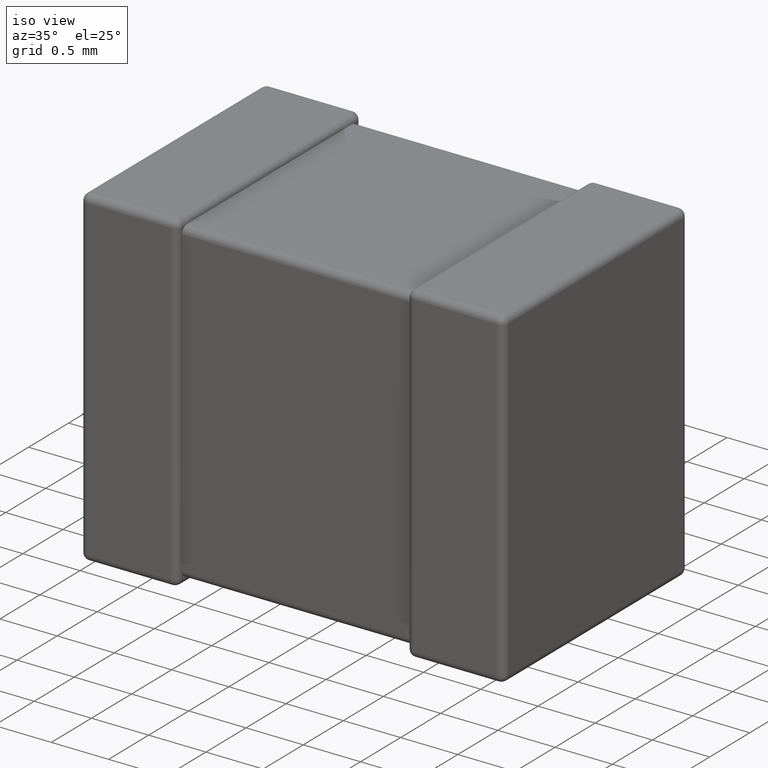
[diagram: clean part render]
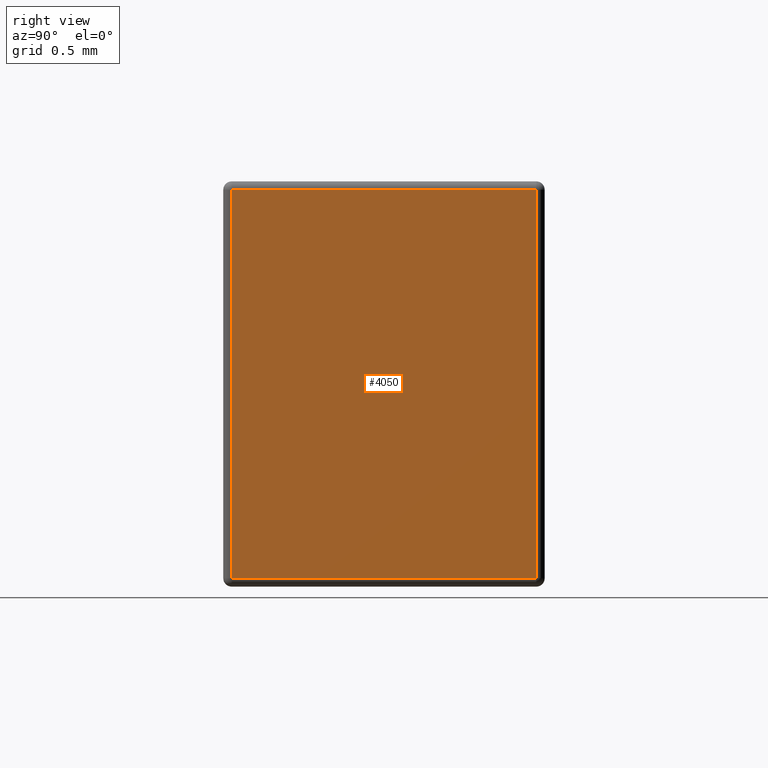
[diagram: tour spotlight — one face highlighted and labeled with its STEP entity id]
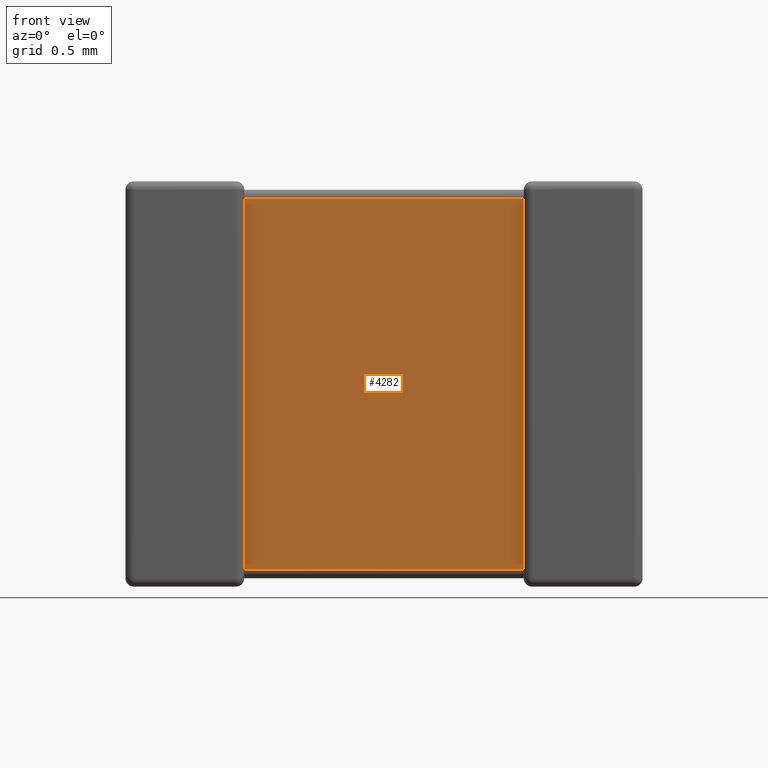
[diagram: tour spotlight — one face highlighted and labeled with its STEP entity id]
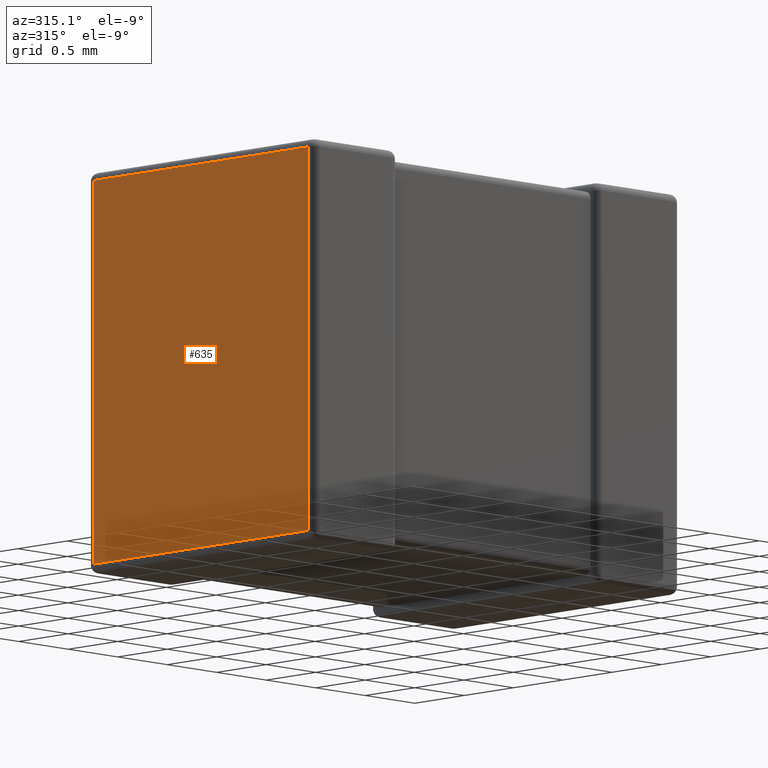
[diagram: tour spotlight — one face highlighted and labeled with its STEP entity id]
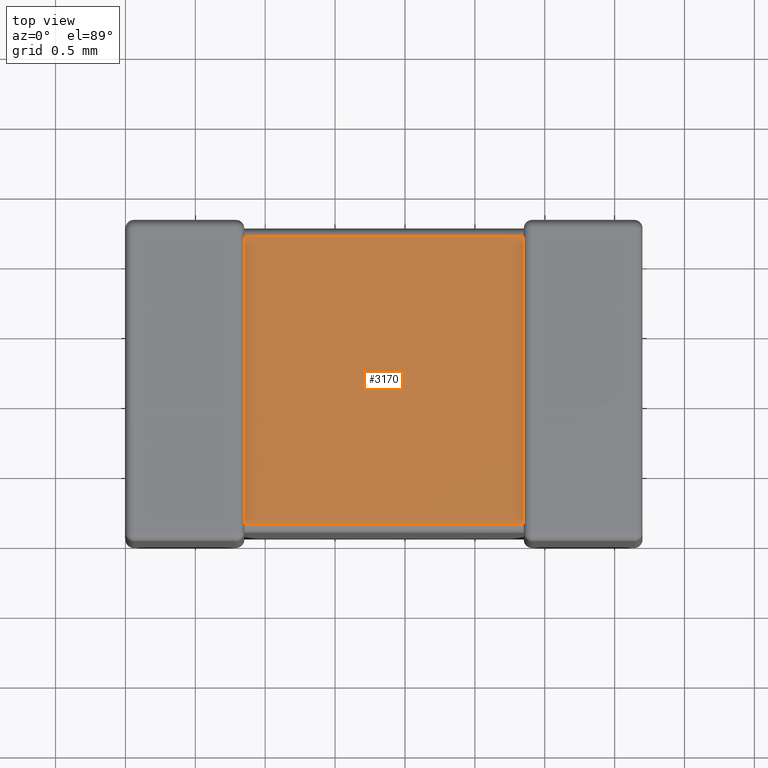
[diagram: tour spotlight — one face highlighted and labeled with its STEP entity id]
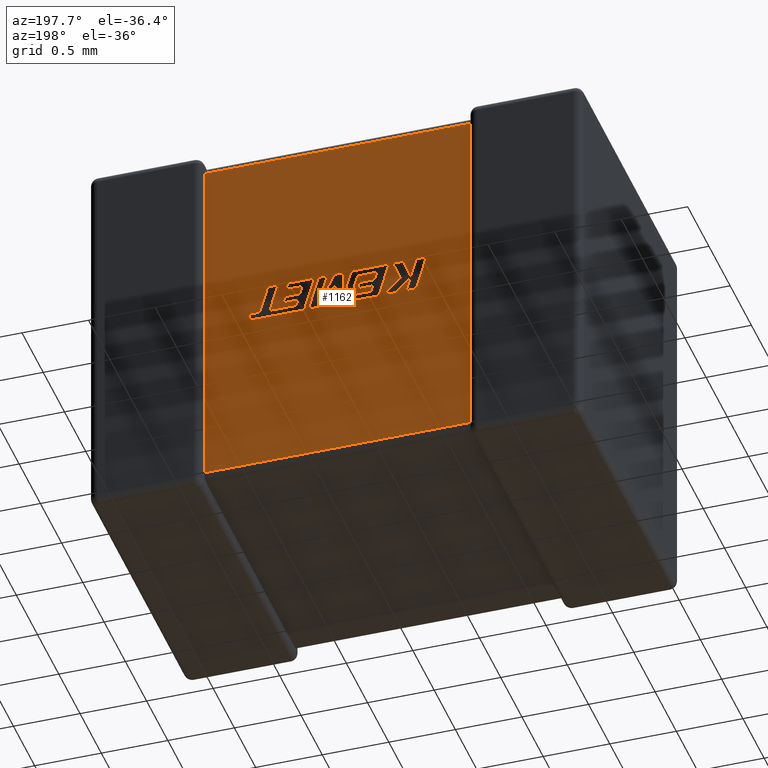
[diagram: tour spotlight — one face highlighted and labeled with its STEP entity id]
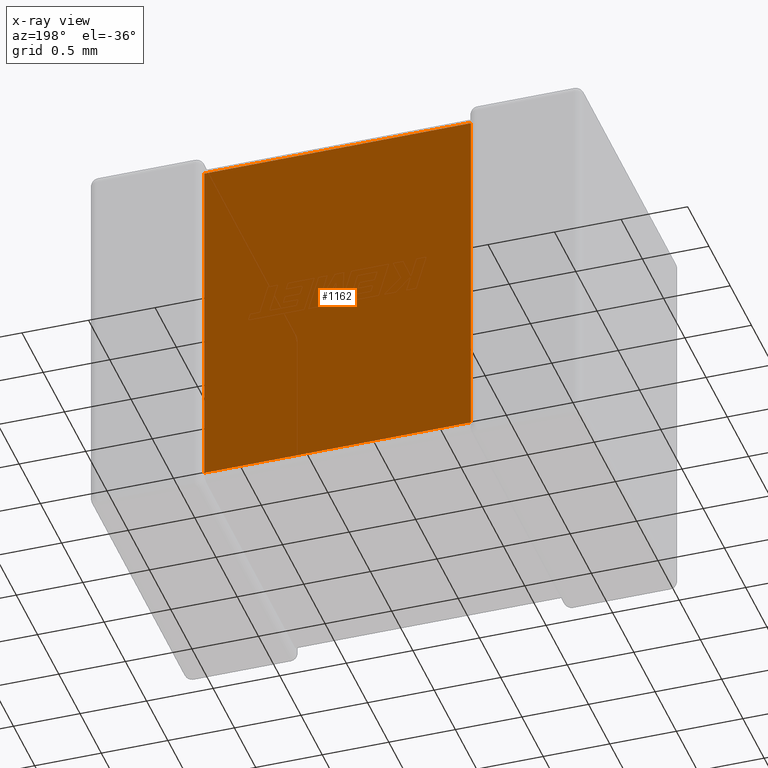
[diagram: x-ray of the same camera — body ghosted, this tour face saturated]
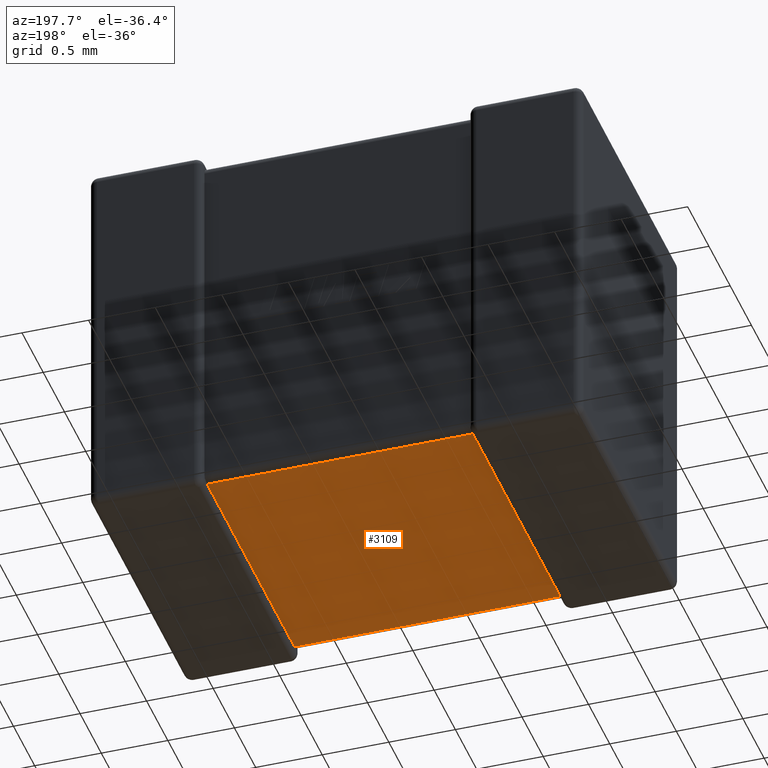
[diagram: tour spotlight — one face highlighted and labeled with its STEP entity id]
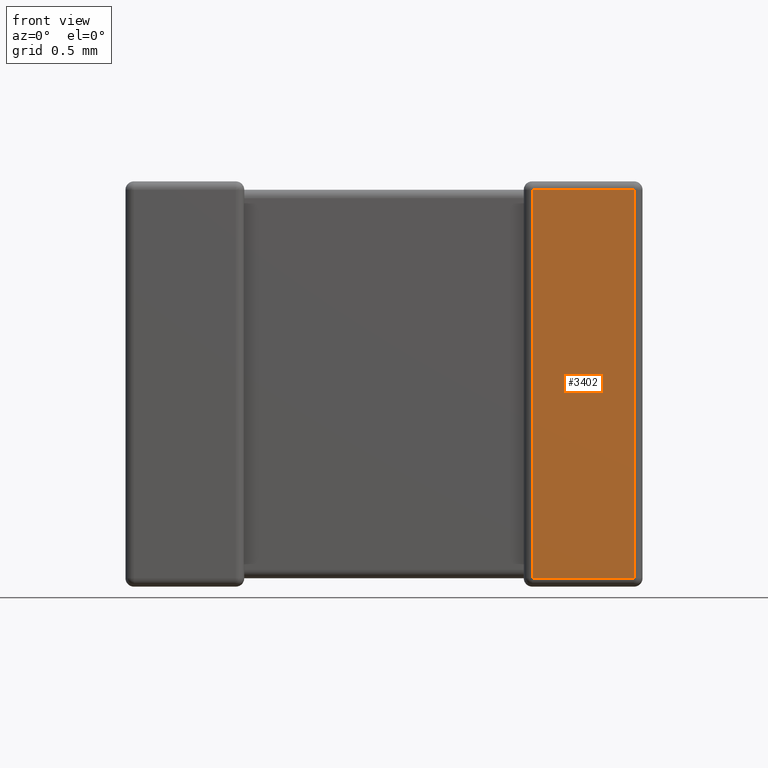
[diagram: tour spotlight — one face highlighted and labeled with its STEP entity id]
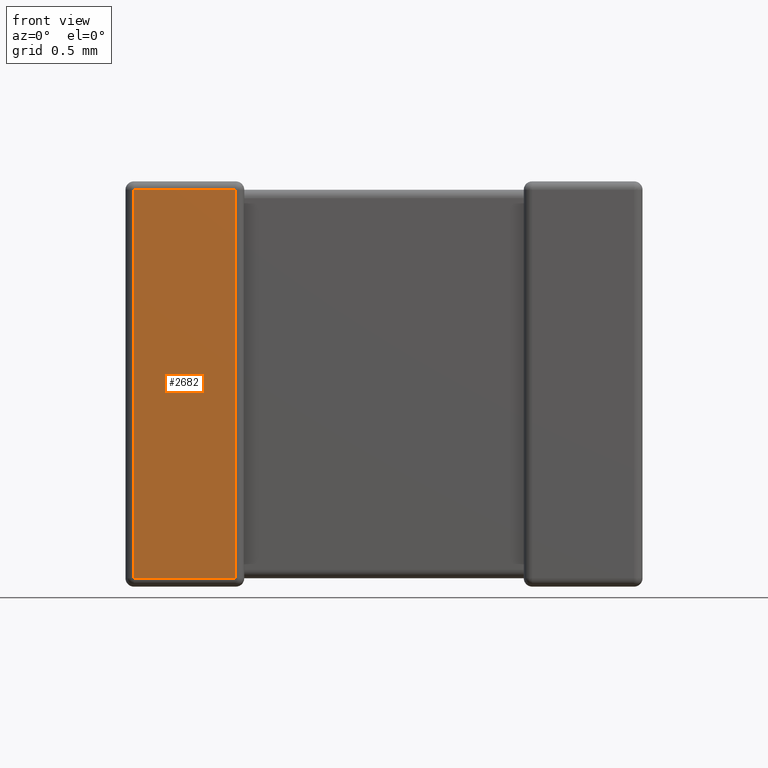
[diagram: tour spotlight — one face highlighted and labeled with its STEP entity id]
A machine part: a face-by-face anatomy tour. The part has 125 B-rep faces; the first image is the clean iso view, then the 8 largest visible faces are spotlighted one at a time (largest first), each with its STEP entity span.

Face 1 — right view, entity #4050. In plain terms, the highlighted planar face has unit normal (-1, 0, 0).
Definition (entity closure, byte-faithful):
#410 = AXIS2_PLACEMENT_3D ( 'NONE', #893, #3086, #1291 ) ;
#512 = DIRECTION ( 'NONE',  ( 0.0000000000000000000, 0.0000000000000000000, 1.000000000000000000 ) ) ;
#593 = DIRECTION ( 'NONE',  ( 0.0000000000000000000, 0.0000000000000000000, -1.000000000000000000 ) ) ;
#645 = LINE ( 'NONE', #2767, #1199 ) ;
#893 = CARTESIAN_POINT ( 'NONE',  ( 3.699999999999999700, 0.0000000000000000000, 0.0000000000000000000 ) ) ;
#1071 = DIRECTION ( 'NONE',  ( 0.0000000000000000000, -1.000000000000000000, 0.0000000000000000000 ) ) ;
#1101 = EDGE_CURVE ( 'NONE', #3103, #1123, #2172, .T. ) ;
#1123 = VERTEX_POINT ( 'NONE', #2667 ) ;
#1181 = CARTESIAN_POINT ( 'NONE',  ( 3.699999999999999700, 0.0000000000000000000, -0.06031999999999999900 ) ) ;
#1199 = VECTOR ( 'NONE', #593, 1000.000000000000000 ) ;
#1291 = DIRECTION ( 'NONE',  ( 0.0000000000000000000, 0.0000000000000000000, 1.000000000000000000 ) ) ;
#1416 = VERTEX_POINT ( 'NONE', #2870 ) ;
#1466 = DIRECTION ( 'NONE',  ( 0.0000000000000000000, 1.000000000000000000, -0.0000000000000000000 ) ) ;
#1938 = VECTOR ( 'NONE', #512, 1000.000000000000000 ) ;
#2145 = LINE ( 'NONE', #3295, #3142 ) ;
#2172 = LINE ( 'NONE', #3685, #1938 ) ;
#2227 = ORIENTED_EDGE ( 'NONE', *, *, #1101, .T. ) ;
#2292 = ORIENTED_EDGE ( 'NONE', *, *, #3544, .T. ) ;
#2315 = PLANE ( 'NONE',  #410 ) ;
#2481 = EDGE_CURVE ( 'NONE', #2951, #3103, #2145, .T. ) ;
#2504 = EDGE_LOOP ( 'NONE', ( #2879, #2227, #4372, #2292 ) ) ;
#2643 = CARTESIAN_POINT ( 'NONE',  ( 3.699999999999999700, 2.239680000000000300, -2.839680000000000000 ) ) ;
#2667 = CARTESIAN_POINT ( 'NONE',  ( 3.699999999999999700, 2.239680000000000300, -0.06031999999999999900 ) ) ;
#2767 = CARTESIAN_POINT ( 'NONE',  ( 3.699999999999999700, 0.06031999999999999900, 0.0000000000000000000 ) ) ;
#2852 = EDGE_CURVE ( 'NONE', #1123, #1416, #3760, .T. ) ;
#2870 = CARTESIAN_POINT ( 'NONE',  ( 3.699999999999999700, 0.06031999999999999900, -0.06031999999999999900 ) ) ;
#2879 = ORIENTED_EDGE ( 'NONE', *, *, #2481, .T. ) ;
#2951 = VERTEX_POINT ( 'NONE', #3134 ) ;
#3086 = DIRECTION ( 'NONE',  ( -1.000000000000000000, 0.0000000000000000000, 0.0000000000000000000 ) ) ;
#3103 = VERTEX_POINT ( 'NONE', #2643 ) ;
#3134 = CARTESIAN_POINT ( 'NONE',  ( 3.699999999999999700, 0.06031999999999999900, -2.839680000000000000 ) ) ;
#3142 = VECTOR ( 'NONE', #1466, 1000.000000000000000 ) ;
#3295 = CARTESIAN_POINT ( 'NONE',  ( 3.699999999999999700, 0.0000000000000000000, -2.839680000000000000 ) ) ;
#3544 = EDGE_CURVE ( 'NONE', #1416, #2951, #645, .T. ) ;
#3685 = CARTESIAN_POINT ( 'NONE',  ( 3.699999999999999700, 2.239680000000000300, 0.0000000000000000000 ) ) ;
#3760 = LINE ( 'NONE', #1181, #3945 ) ;
#3945 = VECTOR ( 'NONE', #1071, 1000.000000000000000 ) ;
#3961 = FACE_OUTER_BOUND ( 'NONE', #2504, .T. ) ;
#4050 = ADVANCED_FACE ( 'NONE', ( #3961 ), #2315, .F. ) ;
#4372 = ORIENTED_EDGE ( 'NONE', *, *, #2852, .T. ) ;

Face 2 — front view, entity #4282. In plain terms, the highlighted planar face has unit normal (0, -1, 0).
Definition (entity closure, byte-faithful):
#241 = ORIENTED_EDGE ( 'NONE', *, *, #1815, .T. ) ;
#298 = EDGE_LOOP ( 'NONE', ( #1048, #725, #3006, #241 ) ) ;
#320 = LINE ( 'NONE', #3157, #3692 ) ;
#421 = LINE ( 'NONE', #2921, #865 ) ;
#725 = ORIENTED_EDGE ( 'NONE', *, *, #3758, .T. ) ;
#744 = DIRECTION ( 'NONE',  ( -0.0000000000000000000, -0.0000000000000000000, 1.000000000000000000 ) ) ;
#832 = EDGE_CURVE ( 'NONE', #2097, #2958, #1299, .T. ) ;
#863 = DIRECTION ( 'NONE',  ( 0.0000000000000000000, -0.0000000000000000000, -1.000000000000000000 ) ) ;
#865 = VECTOR ( 'NONE', #744, 1000.000000000000000 ) ;
#1048 = ORIENTED_EDGE ( 'NONE', *, *, #832, .F. ) ;
#1210 = CARTESIAN_POINT ( 'NONE',  ( 2.849999999999999600, 0.06031999999999912400, -2.779359999999999600 ) ) ;
#1252 = VERTEX_POINT ( 'NONE', #4572 ) ;
#1299 = LINE ( 'NONE', #1353, #4083 ) ;
#1353 = CARTESIAN_POINT ( 'NONE',  ( 0.8499999999999998700, 0.06031999999999912400, -2.899999999999999900 ) ) ;
#1573 = CARTESIAN_POINT ( 'NONE',  ( 0.8499999999999998700, 0.06031999999999912400, -2.899999999999999900 ) ) ;
#1815 = EDGE_CURVE ( 'NONE', #1252, #2958, #2101, .T. ) ;
#1833 = CARTESIAN_POINT ( 'NONE',  ( 0.8499999999999998700, 0.06031999999999912400, -0.1206399999999999800 ) ) ;
#2097 = VERTEX_POINT ( 'NONE', #3739 ) ;
#2101 = LINE ( 'NONE', #2405, #4583 ) ;
#2405 = CARTESIAN_POINT ( 'NONE',  ( 0.8499999999999998700, 0.06031999999999912400, -0.1206399999999999800 ) ) ;
#2863 = EDGE_CURVE ( 'NONE', #3222, #1252, #421, .T. ) ;
#2921 = CARTESIAN_POINT ( 'NONE',  ( 2.849999999999999600, 0.06031999999999912400, -2.899999999999999900 ) ) ;
#2958 = VERTEX_POINT ( 'NONE', #1833 ) ;
#3006 = ORIENTED_EDGE ( 'NONE', *, *, #2863, .T. ) ;
#3059 = PLANE ( 'NONE',  #3944 ) ;
#3157 = CARTESIAN_POINT ( 'NONE',  ( 2.850000000000000100, 0.06031999999999912400, -2.779359999999999600 ) ) ;
#3222 = VERTEX_POINT ( 'NONE', #1210 ) ;
#3421 = DIRECTION ( 'NONE',  ( 0.0000000000000000000, -1.000000000000000000, 0.0000000000000000000 ) ) ;
#3445 = DIRECTION ( 'NONE',  ( -1.000000000000000000, -0.0000000000000000000, -0.0000000000000000000 ) ) ;
#3692 = VECTOR ( 'NONE', #4620, 1000.000000000000000 ) ;
#3739 = CARTESIAN_POINT ( 'NONE',  ( 0.8499999999999998700, 0.06031999999999912400, -2.779359999999999600 ) ) ;
#3758 = EDGE_CURVE ( 'NONE', #2097, #3222, #320, .T. ) ;
#3918 = DIRECTION ( 'NONE',  ( -0.0000000000000000000, -0.0000000000000000000, 1.000000000000000000 ) ) ;
#3944 = AXIS2_PLACEMENT_3D ( 'NONE', #1573, #3421, #863 ) ;
#4083 = VECTOR ( 'NONE', #3918, 1000.000000000000000 ) ;
#4282 = ADVANCED_FACE ( 'NONE', ( #4400 ), #3059, .T. ) ;
#4400 = FACE_OUTER_BOUND ( 'NONE', #298, .T. ) ;
#4572 = CARTESIAN_POINT ( 'NONE',  ( 2.849999999999999600, 0.06031999999999912400, -0.1206399999999999800 ) ) ;
#4583 = VECTOR ( 'NONE', #3445, 1000.000000000000000 ) ;
#4620 = DIRECTION ( 'NONE',  ( 1.000000000000000000, 0.0000000000000000000, -0.0000000000000000000 ) ) ;

Face 3 — auxiliary view, entity #635. In plain terms, the highlighted planar face has unit normal (-1, 0, 0).
Definition (entity closure, byte-faithful):
#5 = EDGE_CURVE ( 'NONE', #4146, #1288, #2310, .T. ) ;
#98 = ORIENTED_EDGE ( 'NONE', *, *, #5, .T. ) ;
#277 = LINE ( 'NONE', #3599, #3247 ) ;
#365 = EDGE_CURVE ( 'NONE', #4199, #1535, #277, .T. ) ;
#594 = CARTESIAN_POINT ( 'NONE',  ( 0.0000000000000000000, 0.06031999999999999900, -2.839680000000000000 ) ) ;
#633 = CARTESIAN_POINT ( 'NONE',  ( 0.0000000000000000000, 0.0000000000000000000, -2.839680000000000000 ) ) ;
#635 = ADVANCED_FACE ( 'NONE', ( #1900 ), #2290, .T. ) ;
#830 = DIRECTION ( 'NONE',  ( -1.000000000000000000, 0.0000000000000000000, 0.0000000000000000000 ) ) ;
#897 = ORIENTED_EDGE ( 'NONE', *, *, #3549, .T. ) ;
#1163 = VECTOR ( 'NONE', #2520, 1000.000000000000000 ) ;
#1288 = VERTEX_POINT ( 'NONE', #4462 ) ;
#1354 = DIRECTION ( 'NONE',  ( -0.0000000000000000000, -1.000000000000000000, -0.0000000000000000000 ) ) ;
#1465 = EDGE_LOOP ( 'NONE', ( #1858, #3185, #897, #98 ) ) ;
#1488 = VECTOR ( 'NONE', #4544, 1000.000000000000000 ) ;
#1531 = AXIS2_PLACEMENT_3D ( 'NONE', #1919, #830, #4108 ) ;
#1535 = VERTEX_POINT ( 'NONE', #3607 ) ;
#1548 = VECTOR ( 'NONE', #1354, 1000.000000000000000 ) ;
#1858 = ORIENTED_EDGE ( 'NONE', *, *, #3749, .T. ) ;
#1900 = FACE_OUTER_BOUND ( 'NONE', #1465, .T. ) ;
#1919 = CARTESIAN_POINT ( 'NONE',  ( 0.0000000000000000000, 0.0000000000000000000, 0.0000000000000000000 ) ) ;
#2068 = CARTESIAN_POINT ( 'NONE',  ( 0.0000000000000000000, 2.300000000000000300, -0.06031999999999999900 ) ) ;
#2290 = PLANE ( 'NONE',  #1531 ) ;
#2310 = LINE ( 'NONE', #3986, #1163 ) ;
#2461 = LINE ( 'NONE', #2068, #1488 ) ;
#2478 = DIRECTION ( 'NONE',  ( -0.0000000000000000000, -0.0000000000000000000, 1.000000000000000000 ) ) ;
#2520 = DIRECTION ( 'NONE',  ( -0.0000000000000000000, 0.0000000000000000000, -1.000000000000000000 ) ) ;
#3185 = ORIENTED_EDGE ( 'NONE', *, *, #365, .T. ) ;
#3247 = VECTOR ( 'NONE', #2478, 1000.000000000000000 ) ;
#3549 = EDGE_CURVE ( 'NONE', #1535, #4146, #2461, .T. ) ;
#3599 = CARTESIAN_POINT ( 'NONE',  ( 0.0000000000000000000, 0.06031999999999999900, 0.0000000000000000000 ) ) ;
#3607 = CARTESIAN_POINT ( 'NONE',  ( 0.0000000000000000000, 0.06031999999999999900, -0.06031999999999999900 ) ) ;
#3749 = EDGE_CURVE ( 'NONE', #1288, #4199, #3941, .T. ) ;
#3814 = CARTESIAN_POINT ( 'NONE',  ( 0.0000000000000000000, 2.239680000000000300, -0.06031999999999999900 ) ) ;
#3941 = LINE ( 'NONE', #633, #1548 ) ;
#3986 = CARTESIAN_POINT ( 'NONE',  ( 0.0000000000000000000, 2.239680000000000300, -2.899999999999999900 ) ) ;
#4108 = DIRECTION ( 'NONE',  ( 0.0000000000000000000, 0.0000000000000000000, 1.000000000000000000 ) ) ;
#4146 = VERTEX_POINT ( 'NONE', #3814 ) ;
#4199 = VERTEX_POINT ( 'NONE', #594 ) ;
#4462 = CARTESIAN_POINT ( 'NONE',  ( 0.0000000000000000000, 2.239680000000000300, -2.839680000000000000 ) ) ;
#4544 = DIRECTION ( 'NONE',  ( -0.0000000000000000000, 1.000000000000000000, -0.0000000000000000000 ) ) ;

Face 4 — top view, entity #3170. In plain terms, the highlighted planar face has unit normal (-0, 0, 1).
Definition (entity closure, byte-faithful):
#268 = VECTOR ( 'NONE', #3829, 1000.000000000000000 ) ;
#319 = EDGE_CURVE ( 'NONE', #799, #1310, #1383, .T. ) ;
#326 = EDGE_CURVE ( 'NONE', #1310, #959, #1208, .T. ) ;
#702 = LINE ( 'NONE', #4578, #268 ) ;
#799 = VERTEX_POINT ( 'NONE', #4519 ) ;
#829 = DIRECTION ( 'NONE',  ( -0.0000000000000000000, 0.0000000000000000000, 1.000000000000000000 ) ) ;
#913 = VECTOR ( 'NONE', #3979, 1000.000000000000000 ) ;
#959 = VERTEX_POINT ( 'NONE', #2181 ) ;
#1208 = LINE ( 'NONE', #3490, #4291 ) ;
#1310 = VERTEX_POINT ( 'NONE', #2791 ) ;
#1317 = DIRECTION ( 'NONE',  ( 1.000000000000000000, 0.0000000000000000000, 0.0000000000000000000 ) ) ;
#1383 = LINE ( 'NONE', #1966, #1443 ) ;
#1443 = VECTOR ( 'NONE', #1317, 1000.000000000000000 ) ;
#1475 = ORIENTED_EDGE ( 'NONE', *, *, #319, .T. ) ;
#1803 = EDGE_LOOP ( 'NONE', ( #2168, #1475, #3323, #2367 ) ) ;
#1887 = LINE ( 'NONE', #3294, #913 ) ;
#1966 = CARTESIAN_POINT ( 'NONE',  ( 0.8500000000000000900, 0.1206399999999991100, -0.06031999999999999200 ) ) ;
#2168 = ORIENTED_EDGE ( 'NONE', *, *, #3855, .F. ) ;
#2181 = CARTESIAN_POINT ( 'NONE',  ( 2.849999999999999600, 2.179360000000000400, -0.06031999999999999200 ) ) ;
#2237 = AXIS2_PLACEMENT_3D ( 'NONE', #2273, #829, #4093 ) ;
#2273 = CARTESIAN_POINT ( 'NONE',  ( 0.8500000000000000900, 0.0000000000000000000, -0.06031999999999999200 ) ) ;
#2367 = ORIENTED_EDGE ( 'NONE', *, *, #3589, .T. ) ;
#2634 = FACE_OUTER_BOUND ( 'NONE', #1803, .T. ) ;
#2791 = CARTESIAN_POINT ( 'NONE',  ( 2.849999999999999600, 0.1206399999999991100, -0.06031999999999999200 ) ) ;
#3071 = VERTEX_POINT ( 'NONE', #4602 ) ;
#3170 = ADVANCED_FACE ( 'NONE', ( #2634 ), #3228, .T. ) ;
#3228 = PLANE ( 'NONE',  #2237 ) ;
#3294 = CARTESIAN_POINT ( 'NONE',  ( 0.8500000000000000900, 0.0000000000000000000, -0.06031999999999999200 ) ) ;
#3323 = ORIENTED_EDGE ( 'NONE', *, *, #326, .T. ) ;
#3490 = CARTESIAN_POINT ( 'NONE',  ( 2.849999999999999600, 0.0000000000000000000, -0.06031999999999999200 ) ) ;
#3589 = EDGE_CURVE ( 'NONE', #959, #3071, #702, .T. ) ;
#3829 = DIRECTION ( 'NONE',  ( -1.000000000000000000, 0.0000000000000000000, -0.0000000000000000000 ) ) ;
#3855 = EDGE_CURVE ( 'NONE', #799, #3071, #1887, .T. ) ;
#3862 = DIRECTION ( 'NONE',  ( -0.0000000000000000000, 1.000000000000000000, -0.0000000000000000000 ) ) ;
#3979 = DIRECTION ( 'NONE',  ( -0.0000000000000000000, 1.000000000000000000, -0.0000000000000000000 ) ) ;
#4093 = DIRECTION ( 'NONE',  ( 1.000000000000000000, 0.0000000000000000000, 0.0000000000000000000 ) ) ;
#4291 = VECTOR ( 'NONE', #3862, 1000.000000000000000 ) ;
#4519 = CARTESIAN_POINT ( 'NONE',  ( 0.8500000000000000900, 0.1206399999999991100, -0.06031999999999999200 ) ) ;
#4578 = CARTESIAN_POINT ( 'NONE',  ( 0.8500000000000000900, 2.179360000000000400, -0.06031999999999999200 ) ) ;
#4602 = CARTESIAN_POINT ( 'NONE',  ( 0.8500000000000000900, 2.179360000000000400, -0.06031999999999999200 ) ) ;

Face 5 — auxiliary view, entity #1162. An x-ray twin of the same camera follows (body ghosted, this face saturated) — the face is partly hidden behind the body. In plain terms, the highlighted planar face has unit normal (0, -1, 0).
Definition (entity closure, byte-faithful):
#203 = ORIENTED_EDGE ( 'NONE', *, *, #1073, .F. ) ;
#265 = EDGE_CURVE ( 'NONE', #1544, #4130, #2871, .T. ) ;
#307 = VECTOR ( 'NONE', #3393, 1000.000000000000000 ) ;
#559 = DIRECTION ( 'NONE',  ( 0.0000000000000000000, -1.000000000000000000, 0.0000000000000000000 ) ) ;
#628 = LINE ( 'NONE', #1265, #307 ) ;
#734 = VECTOR ( 'NONE', #4471, 1000.000000000000000 ) ;
#952 = VERTEX_POINT ( 'NONE', #3484 ) ;
#962 = DIRECTION ( 'NONE',  ( -0.0000000000000000000, -0.0000000000000000000, 1.000000000000000000 ) ) ;
#1046 = CARTESIAN_POINT ( 'NONE',  ( 0.8499999999999998700, 2.239680000000000300, -2.779359999999999600 ) ) ;
#1073 = EDGE_CURVE ( 'NONE', #952, #3344, #3976, .T. ) ;
#1124 = CARTESIAN_POINT ( 'NONE',  ( 2.849999999999999600, 2.239680000000000300, -0.1206399999999999800 ) ) ;
#1162 = ADVANCED_FACE ( 'NONE', ( #4258 ), #2403, .F. ) ;
#1265 = CARTESIAN_POINT ( 'NONE',  ( 0.8499999999999998700, 2.239680000000000300, -2.779359999999999600 ) ) ;
#1437 = AXIS2_PLACEMENT_3D ( 'NONE', #3770, #559, #3083 ) ;
#1544 = VERTEX_POINT ( 'NONE', #1046 ) ;
#2031 = VECTOR ( 'NONE', #2389, 1000.000000000000000 ) ;
#2032 = CARTESIAN_POINT ( 'NONE',  ( 2.850000000000000100, 2.239680000000000300, -0.1206399999999999800 ) ) ;
#2142 = EDGE_CURVE ( 'NONE', #952, #1544, #628, .T. ) ;
#2196 = LINE ( 'NONE', #2032, #2031 ) ;
#2260 = EDGE_CURVE ( 'NONE', #4130, #3344, #2196, .T. ) ;
#2389 = DIRECTION ( 'NONE',  ( 1.000000000000000000, 0.0000000000000000000, -0.0000000000000000000 ) ) ;
#2403 = PLANE ( 'NONE',  #1437 ) ;
#2765 = EDGE_LOOP ( 'NONE', ( #203, #4042, #4606, #3231 ) ) ;
#2871 = LINE ( 'NONE', #3521, #4571 ) ;
#3010 = CARTESIAN_POINT ( 'NONE',  ( 2.849999999999999600, 2.239680000000000300, -2.899999999999999900 ) ) ;
#3083 = DIRECTION ( 'NONE',  ( 0.0000000000000000000, -0.0000000000000000000, -1.000000000000000000 ) ) ;
#3231 = ORIENTED_EDGE ( 'NONE', *, *, #2260, .T. ) ;
#3344 = VERTEX_POINT ( 'NONE', #1124 ) ;
#3393 = DIRECTION ( 'NONE',  ( -1.000000000000000000, -0.0000000000000000000, -0.0000000000000000000 ) ) ;
#3484 = CARTESIAN_POINT ( 'NONE',  ( 2.849999999999999600, 2.239680000000000300, -2.779359999999999600 ) ) ;
#3521 = CARTESIAN_POINT ( 'NONE',  ( 0.8499999999999998700, 2.239680000000000300, -2.899999999999999900 ) ) ;
#3770 = CARTESIAN_POINT ( 'NONE',  ( 0.8499999999999998700, 2.239680000000000300, -2.899999999999999900 ) ) ;
#3870 = CARTESIAN_POINT ( 'NONE',  ( 0.8499999999999998700, 2.239680000000000300, -0.1206399999999999800 ) ) ;
#3976 = LINE ( 'NONE', #3010, #734 ) ;
#4042 = ORIENTED_EDGE ( 'NONE', *, *, #2142, .T. ) ;
#4130 = VERTEX_POINT ( 'NONE', #3870 ) ;
#4258 = FACE_OUTER_BOUND ( 'NONE', #2765, .T. ) ;
#4471 = DIRECTION ( 'NONE',  ( -0.0000000000000000000, -0.0000000000000000000, 1.000000000000000000 ) ) ;
#4571 = VECTOR ( 'NONE', #962, 1000.000000000000000 ) ;
#4606 = ORIENTED_EDGE ( 'NONE', *, *, #265, .T. ) ;

Face 6 — auxiliary view, entity #3109. In plain terms, the highlighted planar face has unit normal (-0, 0, 1).
Definition (entity closure, byte-faithful):
#76 = ORIENTED_EDGE ( 'NONE', *, *, #516, .T. ) ;
#328 = VECTOR ( 'NONE', #4327, 1000.000000000000000 ) ;
#516 = EDGE_CURVE ( 'NONE', #2882, #622, #1498, .T. ) ;
#600 = LINE ( 'NONE', #2084, #3643 ) ;
#622 = VERTEX_POINT ( 'NONE', #3333 ) ;
#918 = LINE ( 'NONE', #3573, #2859 ) ;
#920 = DIRECTION ( 'NONE',  ( -0.0000000000000000000, 1.000000000000000000, -0.0000000000000000000 ) ) ;
#983 = LINE ( 'NONE', #3186, #328 ) ;
#1069 = ORIENTED_EDGE ( 'NONE', *, *, #2731, .T. ) ;
#1119 = ORIENTED_EDGE ( 'NONE', *, *, #3691, .T. ) ;
#1272 = CARTESIAN_POINT ( 'NONE',  ( 2.849999999999999600, 0.1206399999999991100, -2.839680000000000000 ) ) ;
#1295 = ORIENTED_EDGE ( 'NONE', *, *, #2248, .F. ) ;
#1464 = CARTESIAN_POINT ( 'NONE',  ( 0.8500000000000000900, 0.0000000000000000000, -2.839680000000000000 ) ) ;
#1487 = CARTESIAN_POINT ( 'NONE',  ( 0.8500000000000000900, 2.179360000000000400, -2.839680000000000000 ) ) ;
#1498 = LINE ( 'NONE', #1487, #2249 ) ;
#1748 = PLANE ( 'NONE',  #2980 ) ;
#1841 = DIRECTION ( 'NONE',  ( -0.0000000000000000000, 0.0000000000000000000, 1.000000000000000000 ) ) ;
#2084 = CARTESIAN_POINT ( 'NONE',  ( 2.849999999999999600, 0.0000000000000000000, -2.839680000000000000 ) ) ;
#2248 = EDGE_CURVE ( 'NONE', #4374, #622, #600, .T. ) ;
#2249 = VECTOR ( 'NONE', #4391, 1000.000000000000000 ) ;
#2731 = EDGE_CURVE ( 'NONE', #4374, #3723, #983, .T. ) ;
#2810 = DIRECTION ( 'NONE',  ( -0.0000000000000000000, 1.000000000000000000, -0.0000000000000000000 ) ) ;
#2859 = VECTOR ( 'NONE', #2810, 1000.000000000000000 ) ;
#2882 = VERTEX_POINT ( 'NONE', #3240 ) ;
#2976 = FACE_OUTER_BOUND ( 'NONE', #4272, .T. ) ;
#2980 = AXIS2_PLACEMENT_3D ( 'NONE', #1464, #1841, #3431 ) ;
#3109 = ADVANCED_FACE ( 'NONE', ( #2976 ), #1748, .F. ) ;
#3186 = CARTESIAN_POINT ( 'NONE',  ( 0.8499999999999998700, 0.1206399999999991100, -2.839680000000000000 ) ) ;
#3240 = CARTESIAN_POINT ( 'NONE',  ( 0.8500000000000000900, 2.179360000000000400, -2.839680000000000000 ) ) ;
#3333 = CARTESIAN_POINT ( 'NONE',  ( 2.849999999999999600, 2.179360000000000400, -2.839680000000000000 ) ) ;
#3431 = DIRECTION ( 'NONE',  ( 1.000000000000000000, 0.0000000000000000000, 0.0000000000000000000 ) ) ;
#3573 = CARTESIAN_POINT ( 'NONE',  ( 0.8500000000000000900, 0.0000000000000000000, -2.839680000000000000 ) ) ;
#3643 = VECTOR ( 'NONE', #920, 1000.000000000000000 ) ;
#3691 = EDGE_CURVE ( 'NONE', #3723, #2882, #918, .T. ) ;
#3723 = VERTEX_POINT ( 'NONE', #4672 ) ;
#4272 = EDGE_LOOP ( 'NONE', ( #1295, #1069, #1119, #76 ) ) ;
#4327 = DIRECTION ( 'NONE',  ( -1.000000000000000000, 0.0000000000000000000, -0.0000000000000000000 ) ) ;
#4374 = VERTEX_POINT ( 'NONE', #1272 ) ;
#4391 = DIRECTION ( 'NONE',  ( 1.000000000000000000, 0.0000000000000000000, 0.0000000000000000000 ) ) ;
#4672 = CARTESIAN_POINT ( 'NONE',  ( 0.8500000000000000900, 0.1206399999999991100, -2.839680000000000000 ) ) ;

Face 7 — front view, entity #3402. In plain terms, the highlighted planar face has unit normal (-0, 1, 0).
Definition (entity closure, byte-faithful):
#14 = CARTESIAN_POINT ( 'NONE',  ( 3.699999999999999700, 0.0000000000000000000, -0.06031999999999999900 ) ) ;
#280 = CARTESIAN_POINT ( 'NONE',  ( 3.639679999999999800, 0.0000000000000000000, -2.839680000000000000 ) ) ;
#360 = CARTESIAN_POINT ( 'NONE',  ( 2.910319999999999600, 0.0000000000000000000, 0.0000000000000000000 ) ) ;
#397 = DIRECTION ( 'NONE',  ( 0.0000000000000000000, 0.0000000000000000000, -1.000000000000000000 ) ) ;
#414 = LINE ( 'NONE', #360, #694 ) ;
#440 = ORIENTED_EDGE ( 'NONE', *, *, #1415, .T. ) ;
#489 = CARTESIAN_POINT ( 'NONE',  ( 2.910319999999999600, 0.0000000000000000000, -0.06031999999999999900 ) ) ;
#694 = VECTOR ( 'NONE', #397, 1000.000000000000000 ) ;
#871 = DIRECTION ( 'NONE',  ( -0.0000000000000000000, -0.0000000000000000000, 1.000000000000000000 ) ) ;
#880 = VECTOR ( 'NONE', #968, 1000.000000000000000 ) ;
#968 = DIRECTION ( 'NONE',  ( 1.000000000000000000, 0.0000000000000000000, -0.0000000000000000000 ) ) ;
#1025 = VERTEX_POINT ( 'NONE', #2501 ) ;
#1242 = CARTESIAN_POINT ( 'NONE',  ( 3.639679999999999800, 0.0000000000000000000, -0.06031999999999999900 ) ) ;
#1261 = VERTEX_POINT ( 'NONE', #280 ) ;
#1371 = ORIENTED_EDGE ( 'NONE', *, *, #3830, .T. ) ;
#1415 = EDGE_CURVE ( 'NONE', #2611, #3230, #2324, .T. ) ;
#1598 = CARTESIAN_POINT ( 'NONE',  ( 3.639679999999999800, 0.0000000000000000000, 0.0000000000000000000 ) ) ;
#1599 = PLANE ( 'NONE',  #2470 ) ;
#1987 = CARTESIAN_POINT ( 'NONE',  ( 3.699999999999999700, 0.0000000000000000000, 0.0000000000000000000 ) ) ;
#2134 = EDGE_CURVE ( 'NONE', #1261, #2611, #2390, .T. ) ;
#2171 = EDGE_LOOP ( 'NONE', ( #2447, #3395, #440, #1371 ) ) ;
#2324 = LINE ( 'NONE', #14, #2538 ) ;
#2390 = LINE ( 'NONE', #1598, #3173 ) ;
#2447 = ORIENTED_EDGE ( 'NONE', *, *, #4162, .T. ) ;
#2470 = AXIS2_PLACEMENT_3D ( 'NONE', #1987, #3377, #4475 ) ;
#2501 = CARTESIAN_POINT ( 'NONE',  ( 2.910319999999999600, 0.0000000000000000000, -2.839680000000000000 ) ) ;
#2538 = VECTOR ( 'NONE', #3991, 1000.000000000000000 ) ;
#2611 = VERTEX_POINT ( 'NONE', #1242 ) ;
#3173 = VECTOR ( 'NONE', #871, 1000.000000000000000 ) ;
#3230 = VERTEX_POINT ( 'NONE', #489 ) ;
#3377 = DIRECTION ( 'NONE',  ( -0.0000000000000000000, 1.000000000000000000, 0.0000000000000000000 ) ) ;
#3395 = ORIENTED_EDGE ( 'NONE', *, *, #2134, .T. ) ;
#3402 = ADVANCED_FACE ( 'NONE', ( #3997 ), #1599, .F. ) ;
#3830 = EDGE_CURVE ( 'NONE', #3230, #1025, #414, .T. ) ;
#3991 = DIRECTION ( 'NONE',  ( -1.000000000000000000, 0.0000000000000000000, 0.0000000000000000000 ) ) ;
#3997 = FACE_OUTER_BOUND ( 'NONE', #2171, .T. ) ;
#4162 = EDGE_CURVE ( 'NONE', #1025, #1261, #4454, .T. ) ;
#4454 = LINE ( 'NONE', #4580, #880 ) ;
#4475 = DIRECTION ( 'NONE',  ( 0.0000000000000000000, -0.0000000000000000000, 1.000000000000000000 ) ) ;
#4580 = CARTESIAN_POINT ( 'NONE',  ( 3.699999999999999700, 0.0000000000000000000, -2.839680000000000000 ) ) ;

Face 8 — front view, entity #2682. In plain terms, the highlighted planar face has unit normal (-0, 1, 0).
Definition (entity closure, byte-faithful):
#80 = LINE ( 'NONE', #3935, #4138 ) ;
#204 = CARTESIAN_POINT ( 'NONE',  ( 3.699999999999999700, 0.0000000000000000000, -0.06031999999999999900 ) ) ;
#388 = ORIENTED_EDGE ( 'NONE', *, *, #1385, .T. ) ;
#429 = DIRECTION ( 'NONE',  ( 1.000000000000000000, 0.0000000000000000000, -0.0000000000000000000 ) ) ;
#496 = VERTEX_POINT ( 'NONE', #3911 ) ;
#572 = EDGE_LOOP ( 'NONE', ( #2371, #585, #2566, #388 ) ) ;
#585 = ORIENTED_EDGE ( 'NONE', *, *, #4645, .T. ) ;
#966 = AXIS2_PLACEMENT_3D ( 'NONE', #2298, #1951, #4575 ) ;
#1385 = EDGE_CURVE ( 'NONE', #2536, #1422, #80, .T. ) ;
#1422 = VERTEX_POINT ( 'NONE', #1434 ) ;
#1434 = CARTESIAN_POINT ( 'NONE',  ( 0.06031999999999999200, 0.0000000000000000000, -2.839680000000000000 ) ) ;
#1932 = DIRECTION ( 'NONE',  ( -1.000000000000000000, 0.0000000000000000000, 0.0000000000000000000 ) ) ;
#1951 = DIRECTION ( 'NONE',  ( -0.0000000000000000000, 1.000000000000000000, 0.0000000000000000000 ) ) ;
#1964 = CARTESIAN_POINT ( 'NONE',  ( 0.7896799999999918300, 0.0000000000000000000, 0.0000000000000000000 ) ) ;
#1998 = CARTESIAN_POINT ( 'NONE',  ( 0.7896799999999918300, 0.0000000000000000000, -0.06031999999999999900 ) ) ;
#2298 = CARTESIAN_POINT ( 'NONE',  ( 3.699999999999999700, 0.0000000000000000000, 0.0000000000000000000 ) ) ;
#2371 = ORIENTED_EDGE ( 'NONE', *, *, #2493, .T. ) ;
#2473 = VECTOR ( 'NONE', #429, 1000.000000000000000 ) ;
#2493 = EDGE_CURVE ( 'NONE', #1422, #496, #3952, .T. ) ;
#2536 = VERTEX_POINT ( 'NONE', #3057 ) ;
#2566 = ORIENTED_EDGE ( 'NONE', *, *, #3494, .T. ) ;
#2570 = VECTOR ( 'NONE', #1932, 1000.000000000000000 ) ;
#2582 = LINE ( 'NONE', #1964, #3251 ) ;
#2682 = ADVANCED_FACE ( 'NONE', ( #4507 ), #4100, .F. ) ;
#2698 = DIRECTION ( 'NONE',  ( 0.0000000000000000000, 0.0000000000000000000, 1.000000000000000000 ) ) ;
#2854 = DIRECTION ( 'NONE',  ( 0.0000000000000000000, 0.0000000000000000000, -1.000000000000000000 ) ) ;
#3057 = CARTESIAN_POINT ( 'NONE',  ( 0.06031999999999999200, 0.0000000000000000000, -0.06031999999999999900 ) ) ;
#3251 = VECTOR ( 'NONE', #2698, 1000.000000000000000 ) ;
#3494 = EDGE_CURVE ( 'NONE', #4642, #2536, #3534, .T. ) ;
#3534 = LINE ( 'NONE', #204, #2570 ) ;
#3911 = CARTESIAN_POINT ( 'NONE',  ( 0.7896799999999918300, 0.0000000000000000000, -2.839680000000000000 ) ) ;
#3935 = CARTESIAN_POINT ( 'NONE',  ( 0.06031999999999999200, 0.0000000000000000000, -2.899999999999999900 ) ) ;
#3952 = LINE ( 'NONE', #4044, #2473 ) ;
#4044 = CARTESIAN_POINT ( 'NONE',  ( 3.699999999999999700, 0.0000000000000000000, -2.839680000000000000 ) ) ;
#4100 = PLANE ( 'NONE',  #966 ) ;
#4138 = VECTOR ( 'NONE', #2854, 1000.000000000000000 ) ;
#4507 = FACE_OUTER_BOUND ( 'NONE', #572, .T. ) ;
#4575 = DIRECTION ( 'NONE',  ( 0.0000000000000000000, -0.0000000000000000000, 1.000000000000000000 ) ) ;
#4642 = VERTEX_POINT ( 'NONE', #1998 ) ;
#4645 = EDGE_CURVE ( 'NONE', #496, #4642, #2582, .T. ) ;